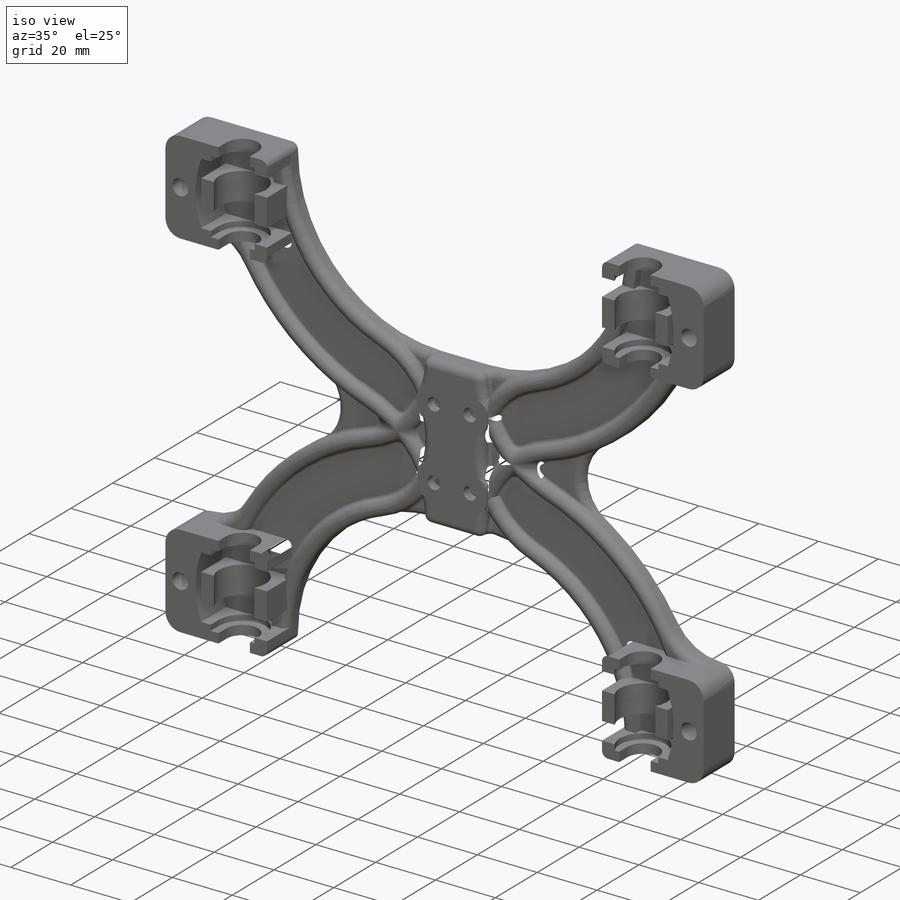
[diagram: iso view]
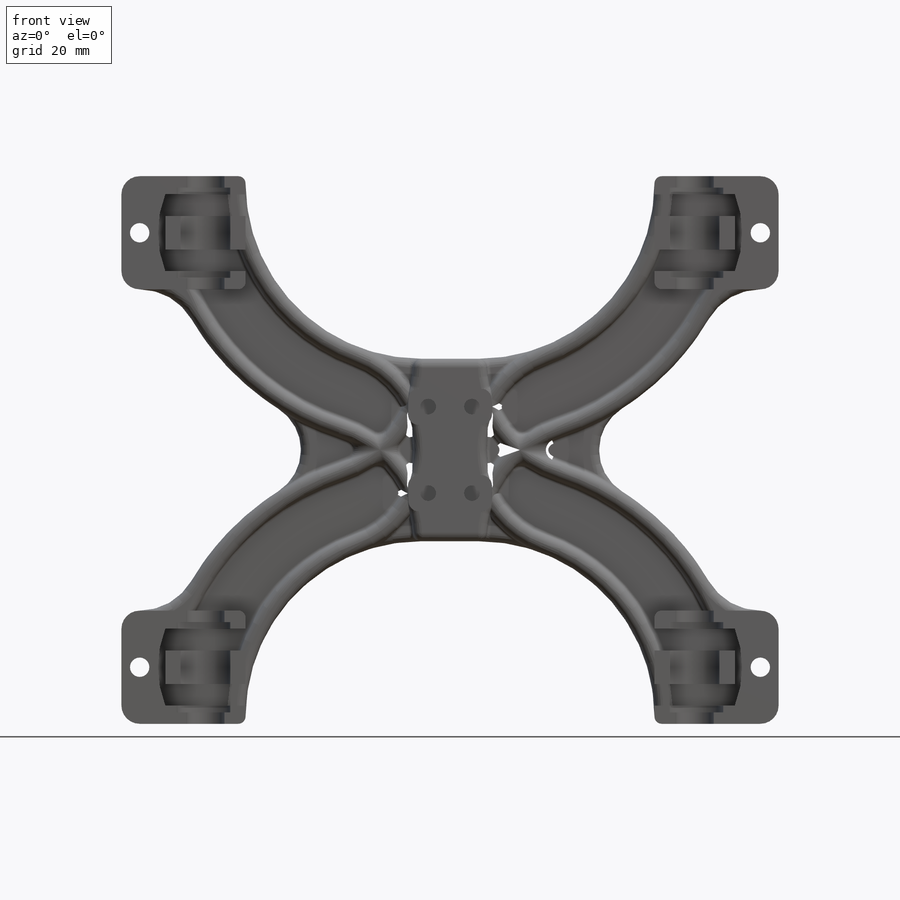
[diagram: front view]
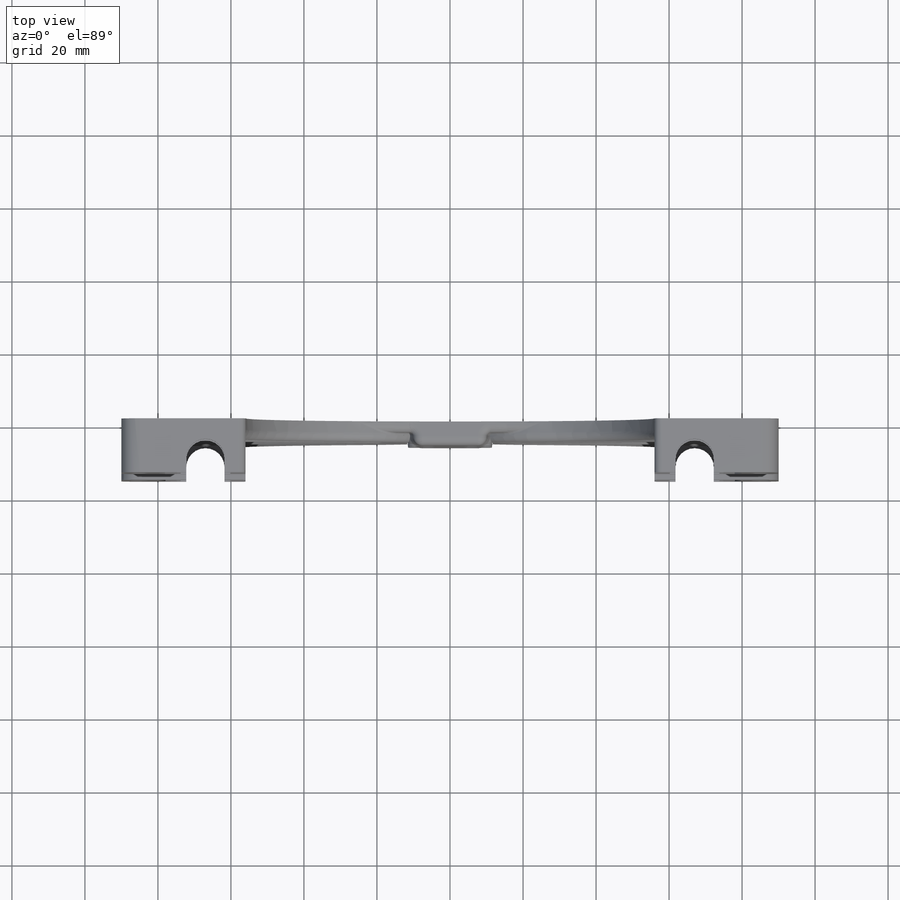
[diagram: top view]
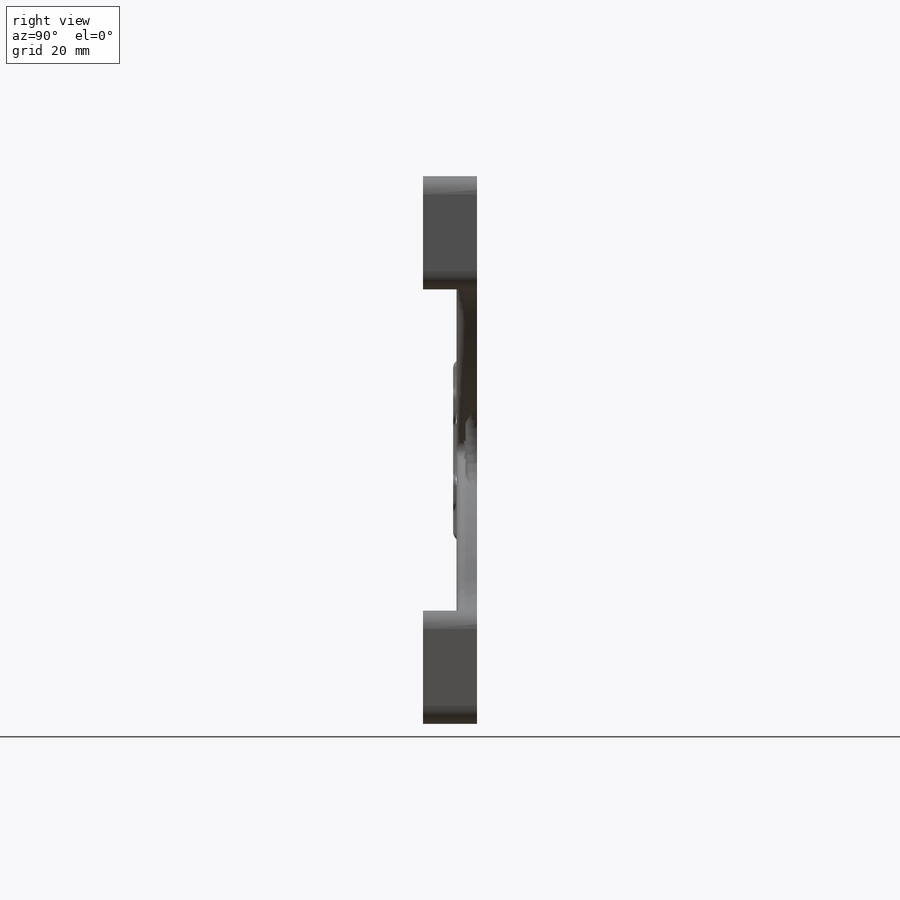
[diagram: right view]
SOLIDWORKS PART (.sldprt)
format: sldprt  version: not decoded by parser v0  size: 2,037,760 bytes
history: native  units: mm
features: sketch x15, fillet x10, extrude x8, cut_extrude x6, material x1, plane x1, cut_revolve x1, mirror x1 (+11 scaffold rows collapsed)
feature tree (54):
  scaffold x11  (default folders/planes/origin — collapsed)
  material  "Material <not specified>"
  sketch  "Sketch1"  dims[c1.D1=12.0mm c1.D2=12.0mm c1.D3=22.0mm c1.D4=22.0mm c1.D5=31.0mm c1.D6=31.0mm c2.D1=10.0mm c2.D3=10.0mm c2.D7=20.0mm c2.D4=20.0mm c3.D1=25.0mm c3.D2=25.0mm c3.D3=25.0mm c3.D4=25.0mm c4.D1=5.0mm c4.D2=25.0mm c4.D3=25.0mm c5.D1=25.0mm c5.D2=25.0mm]
  extrude  "Boss-Extrude1"  Depth=3mm
  sketch  "Sketch2"  dims[D3=34.0mm D1=0.0mm D2=22.0mm]
  extrude  "Boss-Extrude2"  Depth=11.775mm
  sketch  "Sketch3"  dims[D1=5.0mm D2=5.0mm D3=5.9mm D4=5.9mm D5=0.0mm]
  cut_extrude  "Cut-Extrude1"  [1 undecoded]
  sketch  "Sketch4"  dims[D1=0.0mm D2=0.0mm D3=2.0mm]
  extrude  "Boss-Extrude3"  [1 undecoded]
  sketch  "Sketch5"  dims[c1.D1=10.5mm c1.D2=5.25mm c2.D1=3.925mm c2.D2=11.0mm c2.D3=~11.46724mm c3.D2=11.0mm]
  cut_extrude  "Cut-Extrude2"  [1 undecoded]
  plane  "Plane1"  Offset=3.925mm
  sketch  "Sketch6"  dims[D1=0.0mm D2=0.0mm D3=7.85mm D4=12.35mm D5=12.35mm]
  cut_revolve  "Cut-Revolve1"  Angle=360deg
  mirror  "Mirror1"
  sketch  "Sketch7"
  cut_extrude  "Cut-Extrude3"  Depth=3.925mm
  fillet  "Fillet2"  Radius=5mm
  fillet  "Fillet5"  Radius=2mm
  sketch  "Sketch13"  dims[D3=0.978mm D1=0.0mm D2=5.0mm]
  cut_extrude  "Cut-Extrude4"  [1 undecoded]
  sketch  "Sketch14"  dims[c1.D1=0.0mm c1.D2=5.0mm c2.D1=5.0mm c2.D3=0.0mm c2.D4=0.0mm c2.D5=10.0mm c2.D6=10.0mm c2.D7=5.0mm]
  extrude  "Boss-Extrude5"  Depth=2.6mm
  sketch  "Sketch16"  dims[D1=0.0mm]
  extrude  "Boss-Extrude6"  Depth=0.92mm
  sketch  "Sketch19"  dims[D3=~1.481676mm D1=6.0mm D2=6.0mm]
  cut_extrude  "Cut-Extrude7"  [1 undecoded]
  fillet  "Fillet8"  Radius=2.5mm
  fillet  "Fillet6"  Radius=1mm
  fillet  "Fillet9"  Radius=2.5mm
  fillet  "Fillet10"  Radius=2.45mm
  sketch  "Sketch20"  dims[D1=7.5mm]
  cut_extrude  "Cut-Extrude8"  Depth=3mm
  sketch  "Sketch21"
  extrude  "Boss-Extrude7"  Depth=0.64mm
  sketch  "Sketch22"  dims[D1=0.44mm D2=0.88mm]
  extrude  "Boss-Extrude8"  [1 undecoded]
  sketch  "Sketch23"  dims[D1=0.0mm]
  extrude  "Boss-Extrude9"  Depth=3mm
  fillet  "Fillet11"  Radius=3mm
  fillet  "Fillet12"  Radius=2mm
  fillet  "Fillet13"  Radius=2mm
  fillet  "Fillet14"  Radius=1mm
decode coverage: 32 of 41 modeling features carry decoded parameters
note: ~ marks probable driven/reference dimensions
note: 6 parameter values undecoded
summary: no parameter record found for 6 features
note: suppression state not decoded; provenance and decode notes live in map.json
